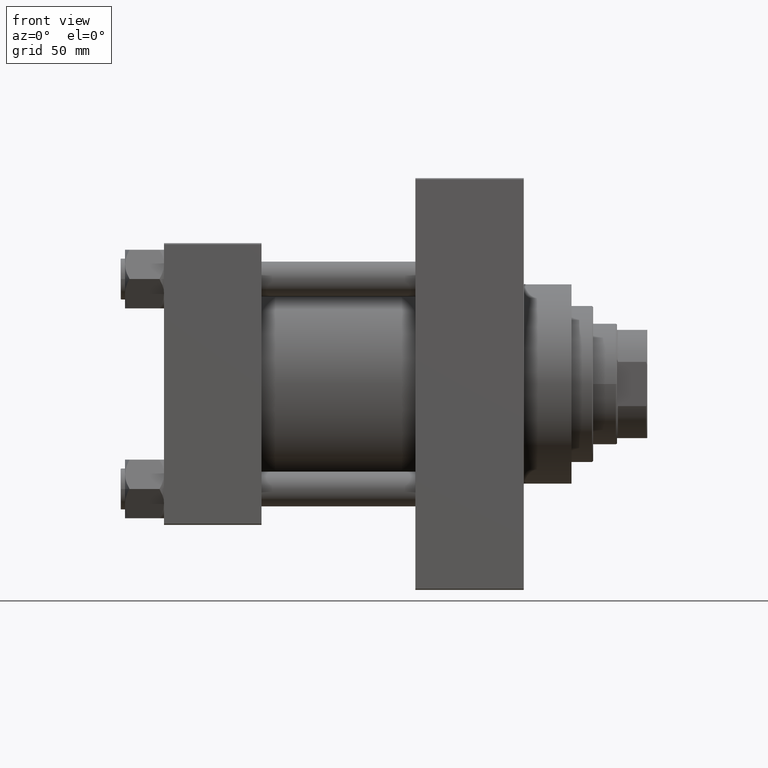
[diagram: clean part render]
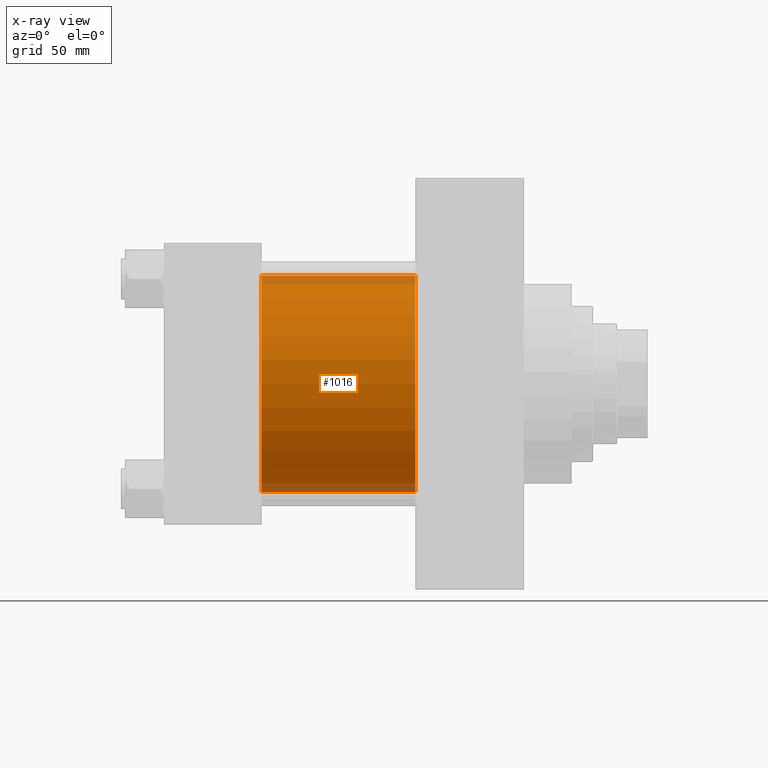
[diagram: x-ray — body ghosted, one internal face saturated and labeled with its STEP entity id]
A machine part, front view, then the same camera in x-ray: the body is ghosted and one INTERNAL B-rep face — a face not visible from any outside direction — is saturated and labeled: STEP entity #1016.
In plain terms, the highlighted cylindrical surface (partial cylindrical patch) has radius 50 mm, axis along (-1, -0, -0).
Its self-contained STEP definition (entity closure, byte-faithful):
#1016 = ADVANCED_FACE ( 'NONE', ( #34697 ), #30658, .F. ) ;
#7011 = EDGE_CURVE ( 'NONE', #12725, #33709, #34995, .T. ) ;
#8348 = AXIS2_PLACEMENT_3D ( 'NONE', #26637, #12027, #18833 ) ;
#8399 = CARTESIAN_POINT ( 'NONE',  ( 45.00000000000000000, 3.521148781771555838E-15, -50.00000000000000000 ) ) ;
#8578 = VECTOR ( 'NONE', #42030, 1000.000000000000000 ) ;
#9928 = VERTEX_POINT ( 'NONE', #47924 ) ;
#10756 = CARTESIAN_POINT ( 'NONE',  ( 115.9999999999999858, -2.602085213965210642E-15, 0.000000000000000000 ) ) ;
#12027 = DIRECTION ( 'NONE',  ( -1.000000000000000000, -0.000000000000000000, -0.000000000000000000 ) ) ;
#12725 = VERTEX_POINT ( 'NONE', #33061 ) ;
#13496 = ORIENTED_EDGE ( 'NONE', *, *, #45375, .F. ) ;
#13567 = DIRECTION ( 'NONE',  ( 0.000000000000000000, 0.000000000000000000, -1.000000000000000000 ) ) ;
#15594 = DIRECTION ( 'NONE',  ( -1.000000000000000000, -0.000000000000000000, -0.000000000000000000 ) ) ;
#15608 = CIRCLE ( 'NONE', #27624, 50.00000000000000000 ) ;
#16339 = LINE ( 'NONE', #38992, #43366 ) ;
#18360 = LINE ( 'NONE', #38484, #8578 ) ;
#18833 = DIRECTION ( 'NONE',  ( 0.000000000000000000, 0.000000000000000000, 1.000000000000000000 ) ) ;
#22539 = ORIENTED_EDGE ( 'NONE', *, *, #7011, .F. ) ;
#23734 = AXIS2_PLACEMENT_3D ( 'NONE', #47343, #32446, #13567 ) ;
#26637 = CARTESIAN_POINT ( 'NONE',  ( 115.9999999999999858, -2.602085213965210642E-15, 0.000000000000000000 ) ) ;
#27624 = AXIS2_PLACEMENT_3D ( 'NONE', #10756, #30377, #29383 ) ;
#28026 = ORIENTED_EDGE ( 'NONE', *, *, #30252, .T. ) ;
#29383 = DIRECTION ( 'NONE',  ( 0.000000000000000000, 0.000000000000000000, -1.000000000000000000 ) ) ;
#29621 = EDGE_LOOP ( 'NONE', ( #28026, #42407, #22539, #13496 ) ) ;
#30252 = EDGE_CURVE ( 'NONE', #9928, #36433, #15608, .T. ) ;
#30377 = DIRECTION ( 'NONE',  ( 1.000000000000000000, 0.000000000000000000, 0.000000000000000000 ) ) ;
#30658 = CYLINDRICAL_SURFACE ( 'NONE', #8348, 50.00000000000000000 ) ;
#32446 = DIRECTION ( 'NONE',  ( 1.000000000000000000, 0.000000000000000000, 0.000000000000000000 ) ) ;
#33061 = CARTESIAN_POINT ( 'NONE',  ( 45.00000000000000000, -2.602085213965210642E-15, 50.00000000000000000 ) ) ;
#33709 = VERTEX_POINT ( 'NONE', #8399 ) ;
#34697 = FACE_OUTER_BOUND ( 'NONE', #29621, .T. ) ;
#34995 = CIRCLE ( 'NONE', #23734, 50.00000000000000000 ) ;
#36433 = VERTEX_POINT ( 'NONE', #43246 ) ;
#36944 = EDGE_CURVE ( 'NONE', #36433, #33709, #18360, .T. ) ;
#38484 = CARTESIAN_POINT ( 'NONE',  ( 115.9999999999999858, 3.521148781771555838E-15, -50.00000000000000000 ) ) ;
#38992 = CARTESIAN_POINT ( 'NONE',  ( 115.9999999999999858, -2.602085213965210642E-15, 50.00000000000000000 ) ) ;
#42030 = DIRECTION ( 'NONE',  ( -1.000000000000000000, -0.000000000000000000, -0.000000000000000000 ) ) ;
#42407 = ORIENTED_EDGE ( 'NONE', *, *, #36944, .T. ) ;
#43246 = CARTESIAN_POINT ( 'NONE',  ( 115.9999999999999858, 3.521148781771555838E-15, -50.00000000000000000 ) ) ;
#43366 = VECTOR ( 'NONE', #15594, 1000.000000000000000 ) ;
#45375 = EDGE_CURVE ( 'NONE', #9928, #12725, #16339, .T. ) ;
#47343 = CARTESIAN_POINT ( 'NONE',  ( 45.00000000000000000, -2.602085213965210642E-15, 0.000000000000000000 ) ) ;
#47924 = CARTESIAN_POINT ( 'NONE',  ( 115.9999999999999858, -2.602085213965210642E-15, 50.00000000000000000 ) ) ;